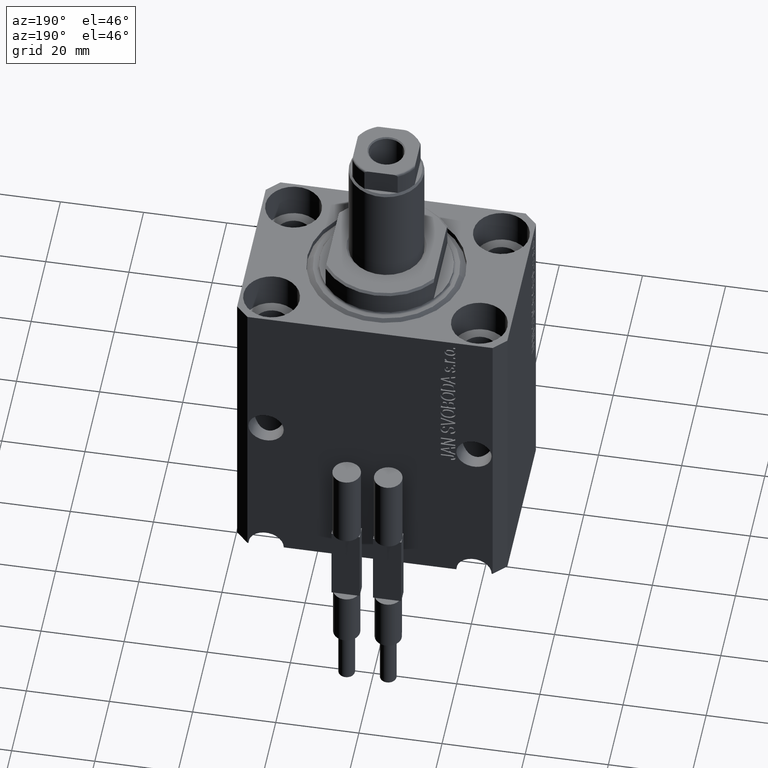
[diagram: clean part render]
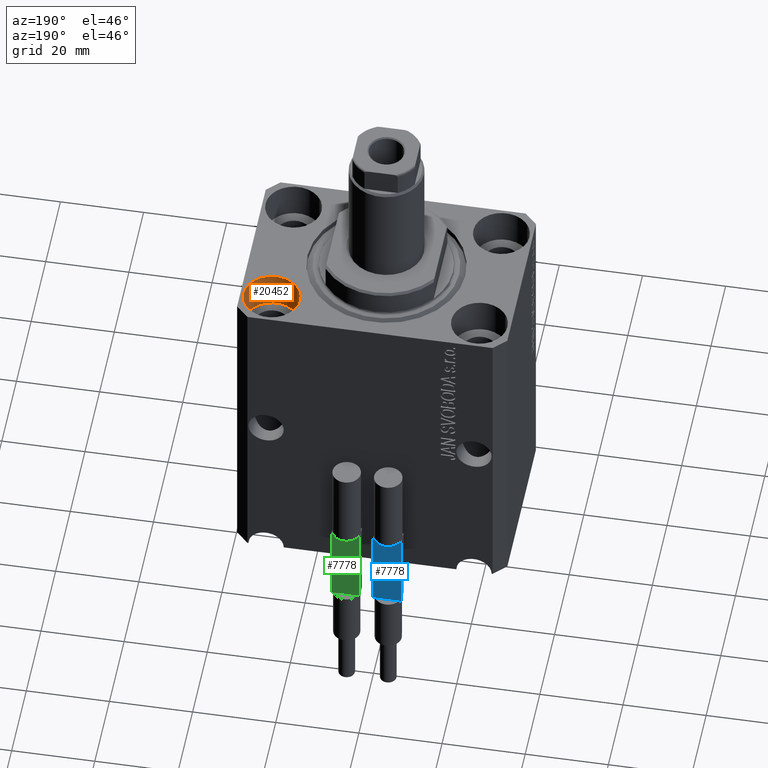
[diagram: same view with three faces highlighted in distinct colors, each labeled with its STEP entity id]
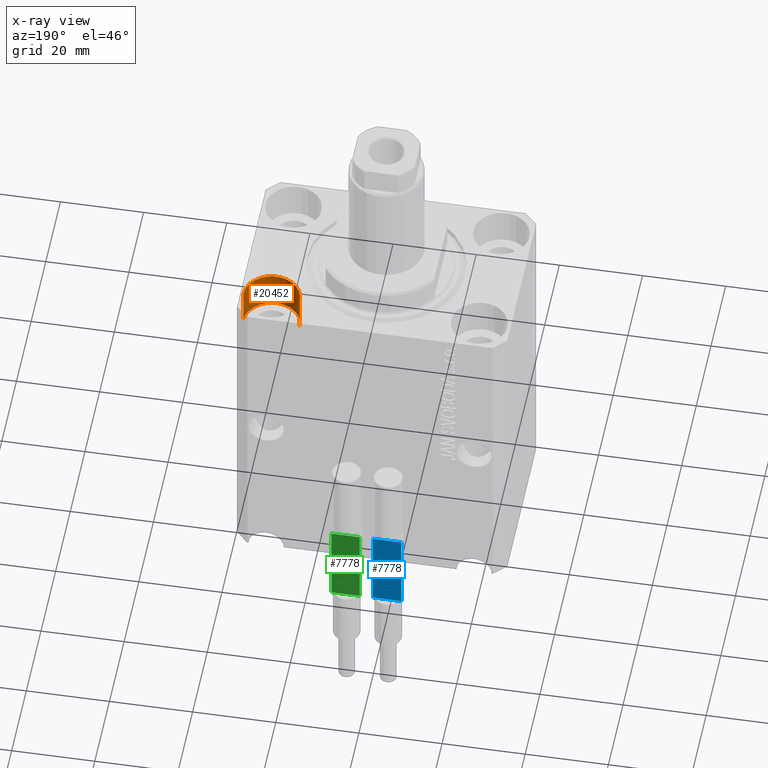
[diagram: x-ray of the same camera — body ghosted, the three highlighted faces saturated]
A machine part, auxiliary view with three faces highlighted in distinct colors.
The next image is the same camera in x-ray (body ghosted, the three faces saturated) — at least one of them is partly hidden behind the body in this view.
Their STEP definitions:

[orange] entity #20452 — the highlighted cylindrical surface (edge-blend (fillet) strip) has radius 6.75 mm, axis along (0, 0, 1).
#418 = VECTOR ( 'NONE', #1900, 1000.000000000000000 ) ;
#1216 = EDGE_CURVE ( 'NONE', #37920, #41885, #1761, .T. ) ;
#1310 = CARTESIAN_POINT ( 'NONE',  ( 31.74999999995845101, 15.00000000000000888, -9.000000000000000000 ) ) ;
#1761 = LINE ( 'NONE', #1310, #5606 ) ;
#1900 = DIRECTION ( 'NONE',  ( -0.000000000000000000, -0.000000000000000000, 1.000000000000000000 ) ) ;
#2991 = CARTESIAN_POINT ( 'NONE',  ( 18.25000000004154543, 15.00000000000000888, -9.000000000000000000 ) ) ;
#4499 = AXIS2_PLACEMENT_3D ( 'NONE', #9960, #23493, #23938 ) ;
#5539 = DIRECTION ( 'NONE',  ( 1.000000000000000000, 0.000000000000000000, 0.000000000000000000 ) ) ;
#5606 = VECTOR ( 'NONE', #14837, 1000.000000000000000 ) ;
#6857 = FACE_OUTER_BOUND ( 'NONE', #43462, .T. ) ;
#9442 = ORIENTED_EDGE ( 'NONE', *, *, #17221, .F. ) ;
#9960 = CARTESIAN_POINT ( 'NONE',  ( 24.99999999999999645, 15.00000000000000888, -9.000000000000000000 ) ) ;
#12284 = EDGE_CURVE ( 'NONE', #19403, #41885, #38084, .T. ) ;
#13046 = DIRECTION ( 'NONE',  ( 1.000000000000000000, 0.000000000000000000, 0.000000000000000000 ) ) ;
#14837 = DIRECTION ( 'NONE',  ( -0.000000000000000000, -0.000000000000000000, 1.000000000000000000 ) ) ;
#17221 = EDGE_CURVE ( 'NONE', #31611, #37920, #33007, .T. ) ;
#19307 = CARTESIAN_POINT ( 'NONE',  ( 18.25000000004154543, 15.00000000000000888, -9.000000000000000000 ) ) ;
#19403 = VERTEX_POINT ( 'NONE', #25733 ) ;
#20452 = ADVANCED_FACE ( 'NONE', ( #6857 ), #27013, .F. ) ;
#21046 = DIRECTION ( 'NONE',  ( -0.000000000000000000, -0.000000000000000000, 1.000000000000000000 ) ) ;
#21871 = ORIENTED_EDGE ( 'NONE', *, *, #12284, .T. ) ;
#23493 = DIRECTION ( 'NONE',  ( 0.000000000000000000, 0.000000000000000000, 1.000000000000000000 ) ) ;
#23938 = DIRECTION ( 'NONE',  ( 1.000000000000000000, 0.000000000000000000, 0.000000000000000000 ) ) ;
#24225 = CARTESIAN_POINT ( 'NONE',  ( 31.74999999995845101, 15.00000000000000888, -9.000000000000000000 ) ) ;
#25733 = CARTESIAN_POINT ( 'NONE',  ( 18.25000000004154543, 15.00000000000000888, 0.000000000000000000 ) ) ;
#25937 = DIRECTION ( 'NONE',  ( 0.000000000000000000, 0.000000000000000000, 1.000000000000000000 ) ) ;
#27013 = CYLINDRICAL_SURFACE ( 'NONE', #41889, 6.749999999958452790 ) ;
#27572 = EDGE_CURVE ( 'NONE', #31611, #19403, #36950, .T. ) ;
#27691 = CARTESIAN_POINT ( 'NONE',  ( 24.99999999999999645, 15.00000000000000888, -9.000000000000000000 ) ) ;
#28759 = CARTESIAN_POINT ( 'NONE',  ( 31.74999999995845101, 15.00000000000000888, 0.000000000000000000 ) ) ;
#30052 = AXIS2_PLACEMENT_3D ( 'NONE', #39929, #25937, #5539 ) ;
#30854 = ORIENTED_EDGE ( 'NONE', *, *, #27572, .T. ) ;
#31611 = VERTEX_POINT ( 'NONE', #2991 ) ;
#33007 = CIRCLE ( 'NONE', #4499, 6.749999999958452790 ) ;
#36950 = LINE ( 'NONE', #19307, #418 ) ;
#37920 = VERTEX_POINT ( 'NONE', #24225 ) ;
#38084 = CIRCLE ( 'NONE', #30052, 6.749999999958452790 ) ;
#39929 = CARTESIAN_POINT ( 'NONE',  ( 24.99999999999999645, 15.00000000000000888, 0.000000000000000000 ) ) ;
#41885 = VERTEX_POINT ( 'NONE', #28759 ) ;
#41889 = AXIS2_PLACEMENT_3D ( 'NONE', #27691, #21046, #13046 ) ;
#43462 = EDGE_LOOP ( 'NONE', ( #9442, #30854, #21871, #43550 ) ) ;
#43550 = ORIENTED_EDGE ( 'NONE', *, *, #1216, .F. ) ;

[blue] entity #7778 — the highlighted planar face has unit normal (0, -1, 0).
#50 = VECTOR ( 'NONE', #22550, 1000.000000000000000 ) ;
#84 = CARTESIAN_POINT ( 'NONE',  ( -3.399999999999999911, 1.500000000000000000, 20.00000000000000000 ) ) ;
#528 = LINE ( 'NONE', #84, #34170 ) ;
#536 = LINE ( 'NONE', #17728, #41545 ) ;
#618 = CARTESIAN_POINT ( 'NONE',  ( -3.399999999999999911, 1.500000000000000000, 40.00000000000000000 ) ) ;
#665 = ORIENTED_EDGE ( 'NONE', *, *, #3576, .T. ) ;
#869 = VERTEX_POINT ( 'NONE', #8514 ) ;
#1028 = VERTEX_POINT ( 'NONE', #12127 ) ;
#1879 = CARTESIAN_POINT ( 'NONE',  ( -3.399999999999999911, 1.500000000000000000, 20.00000000000000000 ) ) ;
#1891 = ORIENTED_EDGE ( 'NONE', *, *, #18344, .F. ) ;
#2522 = VERTEX_POINT ( 'NONE', #40874 ) ;
#3576 = EDGE_CURVE ( 'NONE', #1028, #2522, #528, .T. ) ;
#3784 = VERTEX_POINT ( 'NONE', #10024 ) ;
#4351 = CARTESIAN_POINT ( 'NONE',  ( -3.399999999999999911, 1.500000000000000000, 20.00000000000000000 ) ) ;
#4526 = EDGE_CURVE ( 'NONE', #3784, #21513, #536, .T. ) ;
#5511 = ORIENTED_EDGE ( 'NONE', *, *, #20854, .F. ) ;
#7778 = ADVANCED_FACE ( 'NONE', ( #11156 ), #24899, .F. ) ;
#7797 = VERTEX_POINT ( 'NONE', #25346 ) ;
#8514 = CARTESIAN_POINT ( 'NONE',  ( -3.399999999999999911, 1.500000000000000000, 40.00000000000000000 ) ) ;
#10024 = CARTESIAN_POINT ( 'NONE',  ( 3.400000000000000355, 1.500000000000000000, 40.00000000000000000 ) ) ;
#11156 = FACE_OUTER_BOUND ( 'NONE', #24067, .T. ) ;
#11158 = LINE ( 'NONE', #618, #42649 ) ;
#11485 = CARTESIAN_POINT ( 'NONE',  ( 2.883140648667699146, 1.500000000000000000, 40.00000000000000000 ) ) ;
#12127 = CARTESIAN_POINT ( 'NONE',  ( -3.051229260478471428, 1.500000000000000000, 20.00000000000000000 ) ) ;
#12234 = ORIENTED_EDGE ( 'NONE', *, *, #4526, .F. ) ;
#12322 = EDGE_CURVE ( 'NONE', #35675, #1028, #36710, .T. ) ;
#12798 = VECTOR ( 'NONE', #28421, 1000.000000000000000 ) ;
#13591 = LINE ( 'NONE', #33986, #34498 ) ;
#14209 = ORIENTED_EDGE ( 'NONE', *, *, #42520, .T. ) ;
#17728 = CARTESIAN_POINT ( 'NONE',  ( -3.399999999999999911, 1.500000000000000000, 40.00000000000000000 ) ) ;
#18344 = EDGE_CURVE ( 'NONE', #21513, #41859, #13591, .T. ) ;
#19789 = VECTOR ( 'NONE', #37149, 1000.000000000000000 ) ;
#20854 = EDGE_CURVE ( 'NONE', #869, #2522, #11158, .T. ) ;
#21513 = VERTEX_POINT ( 'NONE', #11485 ) ;
#21981 = LINE ( 'NONE', #4351, #22664 ) ;
#22550 = DIRECTION ( 'NONE',  ( -1.000000000000000000, -0.000000000000000000, -0.000000000000000000 ) ) ;
#22664 = VECTOR ( 'NONE', #32301, 1000.000000000000000 ) ;
#23215 = LINE ( 'NONE', #40653, #50 ) ;
#24067 = EDGE_LOOP ( 'NONE', ( #14209, #32144, #665, #5511, #25706, #1891, #12234, #45029 ) ) ;
#24817 = DIRECTION ( 'NONE',  ( -1.000000000000000000, -0.000000000000000000, -0.000000000000000000 ) ) ;
#24899 = PLANE ( 'NONE',  #31402 ) ;
#25346 = CARTESIAN_POINT ( 'NONE',  ( 3.400000000000000355, 1.500000000000000000, 20.00000000000000000 ) ) ;
#25409 = EDGE_CURVE ( 'NONE', #3784, #7797, #25430, .T. ) ;
#25430 = LINE ( 'NONE', #39414, #12798 ) ;
#25706 = ORIENTED_EDGE ( 'NONE', *, *, #43894, .F. ) ;
#26120 = CARTESIAN_POINT ( 'NONE',  ( 3.051229260478471428, 1.500000000000000000, 20.00000000000000000 ) ) ;
#28421 = DIRECTION ( 'NONE',  ( -0.000000000000000000, -0.000000000000000000, -1.000000000000000000 ) ) ;
#28579 = DIRECTION ( 'NONE',  ( -0.000000000000000000, -0.000000000000000000, -1.000000000000000000 ) ) ;
#29432 = CARTESIAN_POINT ( 'NONE',  ( -2.883140648667699146, 1.500000000000000000, 40.00000000000000000 ) ) ;
#30551 = DIRECTION ( 'NONE',  ( -1.000000000000000000, -0.000000000000000000, -0.000000000000000000 ) ) ;
#31402 = AXIS2_PLACEMENT_3D ( 'NONE', #44680, #38892, #41231 ) ;
#32144 = ORIENTED_EDGE ( 'NONE', *, *, #12322, .T. ) ;
#32301 = DIRECTION ( 'NONE',  ( -1.000000000000000000, -0.000000000000000000, -0.000000000000000000 ) ) ;
#33986 = CARTESIAN_POINT ( 'NONE',  ( -3.399999999999999911, 1.500000000000000000, 40.00000000000000000 ) ) ;
#34170 = VECTOR ( 'NONE', #42011, 1000.000000000000000 ) ;
#34498 = VECTOR ( 'NONE', #30551, 1000.000000000000000 ) ;
#35675 = VERTEX_POINT ( 'NONE', #26120 ) ;
#36710 = LINE ( 'NONE', #1879, #19789 ) ;
#37149 = DIRECTION ( 'NONE',  ( -1.000000000000000000, -0.000000000000000000, -0.000000000000000000 ) ) ;
#38892 = DIRECTION ( 'NONE',  ( 0.000000000000000000, -1.000000000000000000, 0.000000000000000000 ) ) ;
#39414 = CARTESIAN_POINT ( 'NONE',  ( 3.400000000000000355, 1.500000000000000000, 40.00000000000000000 ) ) ;
#40653 = CARTESIAN_POINT ( 'NONE',  ( -3.399999999999999911, 1.500000000000000000, 40.00000000000000000 ) ) ;
#40874 = CARTESIAN_POINT ( 'NONE',  ( -3.399999999999999911, 1.500000000000000000, 20.00000000000000000 ) ) ;
#41231 = DIRECTION ( 'NONE',  ( 0.000000000000000000, -0.000000000000000000, -1.000000000000000000 ) ) ;
#41545 = VECTOR ( 'NONE', #24817, 1000.000000000000000 ) ;
#41859 = VERTEX_POINT ( 'NONE', #29432 ) ;
#42011 = DIRECTION ( 'NONE',  ( -1.000000000000000000, -0.000000000000000000, -0.000000000000000000 ) ) ;
#42520 = EDGE_CURVE ( 'NONE', #7797, #35675, #21981, .T. ) ;
#42649 = VECTOR ( 'NONE', #28579, 1000.000000000000000 ) ;
#43894 = EDGE_CURVE ( 'NONE', #41859, #869, #23215, .T. ) ;
#44680 = CARTESIAN_POINT ( 'NONE',  ( -3.399999999999999911, 1.500000000000000000, 40.00000000000000000 ) ) ;
#45029 = ORIENTED_EDGE ( 'NONE', *, *, #25409, .T. ) ;

[green] entity #7778 — the highlighted planar face has unit normal (0, -1, 0).
#50 = VECTOR ( 'NONE', #22550, 1000.000000000000000 ) ;
#84 = CARTESIAN_POINT ( 'NONE',  ( -3.399999999999999911, 1.500000000000000000, 20.00000000000000000 ) ) ;
#528 = LINE ( 'NONE', #84, #34170 ) ;
#536 = LINE ( 'NONE', #17728, #41545 ) ;
#618 = CARTESIAN_POINT ( 'NONE',  ( -3.399999999999999911, 1.500000000000000000, 40.00000000000000000 ) ) ;
#665 = ORIENTED_EDGE ( 'NONE', *, *, #3576, .T. ) ;
#869 = VERTEX_POINT ( 'NONE', #8514 ) ;
#1028 = VERTEX_POINT ( 'NONE', #12127 ) ;
#1879 = CARTESIAN_POINT ( 'NONE',  ( -3.399999999999999911, 1.500000000000000000, 20.00000000000000000 ) ) ;
#1891 = ORIENTED_EDGE ( 'NONE', *, *, #18344, .F. ) ;
#2522 = VERTEX_POINT ( 'NONE', #40874 ) ;
#3576 = EDGE_CURVE ( 'NONE', #1028, #2522, #528, .T. ) ;
#3784 = VERTEX_POINT ( 'NONE', #10024 ) ;
#4351 = CARTESIAN_POINT ( 'NONE',  ( -3.399999999999999911, 1.500000000000000000, 20.00000000000000000 ) ) ;
#4526 = EDGE_CURVE ( 'NONE', #3784, #21513, #536, .T. ) ;
#5511 = ORIENTED_EDGE ( 'NONE', *, *, #20854, .F. ) ;
#7778 = ADVANCED_FACE ( 'NONE', ( #11156 ), #24899, .F. ) ;
#7797 = VERTEX_POINT ( 'NONE', #25346 ) ;
#8514 = CARTESIAN_POINT ( 'NONE',  ( -3.399999999999999911, 1.500000000000000000, 40.00000000000000000 ) ) ;
#10024 = CARTESIAN_POINT ( 'NONE',  ( 3.400000000000000355, 1.500000000000000000, 40.00000000000000000 ) ) ;
#11156 = FACE_OUTER_BOUND ( 'NONE', #24067, .T. ) ;
#11158 = LINE ( 'NONE', #618, #42649 ) ;
#11485 = CARTESIAN_POINT ( 'NONE',  ( 2.883140648667699146, 1.500000000000000000, 40.00000000000000000 ) ) ;
#12127 = CARTESIAN_POINT ( 'NONE',  ( -3.051229260478471428, 1.500000000000000000, 20.00000000000000000 ) ) ;
#12234 = ORIENTED_EDGE ( 'NONE', *, *, #4526, .F. ) ;
#12322 = EDGE_CURVE ( 'NONE', #35675, #1028, #36710, .T. ) ;
#12798 = VECTOR ( 'NONE', #28421, 1000.000000000000000 ) ;
#13591 = LINE ( 'NONE', #33986, #34498 ) ;
#14209 = ORIENTED_EDGE ( 'NONE', *, *, #42520, .T. ) ;
#17728 = CARTESIAN_POINT ( 'NONE',  ( -3.399999999999999911, 1.500000000000000000, 40.00000000000000000 ) ) ;
#18344 = EDGE_CURVE ( 'NONE', #21513, #41859, #13591, .T. ) ;
#19789 = VECTOR ( 'NONE', #37149, 1000.000000000000000 ) ;
#20854 = EDGE_CURVE ( 'NONE', #869, #2522, #11158, .T. ) ;
#21513 = VERTEX_POINT ( 'NONE', #11485 ) ;
#21981 = LINE ( 'NONE', #4351, #22664 ) ;
#22550 = DIRECTION ( 'NONE',  ( -1.000000000000000000, -0.000000000000000000, -0.000000000000000000 ) ) ;
#22664 = VECTOR ( 'NONE', #32301, 1000.000000000000000 ) ;
#23215 = LINE ( 'NONE', #40653, #50 ) ;
#24067 = EDGE_LOOP ( 'NONE', ( #14209, #32144, #665, #5511, #25706, #1891, #12234, #45029 ) ) ;
#24817 = DIRECTION ( 'NONE',  ( -1.000000000000000000, -0.000000000000000000, -0.000000000000000000 ) ) ;
#24899 = PLANE ( 'NONE',  #31402 ) ;
#25346 = CARTESIAN_POINT ( 'NONE',  ( 3.400000000000000355, 1.500000000000000000, 20.00000000000000000 ) ) ;
#25409 = EDGE_CURVE ( 'NONE', #3784, #7797, #25430, .T. ) ;
#25430 = LINE ( 'NONE', #39414, #12798 ) ;
#25706 = ORIENTED_EDGE ( 'NONE', *, *, #43894, .F. ) ;
#26120 = CARTESIAN_POINT ( 'NONE',  ( 3.051229260478471428, 1.500000000000000000, 20.00000000000000000 ) ) ;
#28421 = DIRECTION ( 'NONE',  ( -0.000000000000000000, -0.000000000000000000, -1.000000000000000000 ) ) ;
#28579 = DIRECTION ( 'NONE',  ( -0.000000000000000000, -0.000000000000000000, -1.000000000000000000 ) ) ;
#29432 = CARTESIAN_POINT ( 'NONE',  ( -2.883140648667699146, 1.500000000000000000, 40.00000000000000000 ) ) ;
#30551 = DIRECTION ( 'NONE',  ( -1.000000000000000000, -0.000000000000000000, -0.000000000000000000 ) ) ;
#31402 = AXIS2_PLACEMENT_3D ( 'NONE', #44680, #38892, #41231 ) ;
#32144 = ORIENTED_EDGE ( 'NONE', *, *, #12322, .T. ) ;
#32301 = DIRECTION ( 'NONE',  ( -1.000000000000000000, -0.000000000000000000, -0.000000000000000000 ) ) ;
#33986 = CARTESIAN_POINT ( 'NONE',  ( -3.399999999999999911, 1.500000000000000000, 40.00000000000000000 ) ) ;
#34170 = VECTOR ( 'NONE', #42011, 1000.000000000000000 ) ;
#34498 = VECTOR ( 'NONE', #30551, 1000.000000000000000 ) ;
#35675 = VERTEX_POINT ( 'NONE', #26120 ) ;
#36710 = LINE ( 'NONE', #1879, #19789 ) ;
#37149 = DIRECTION ( 'NONE',  ( -1.000000000000000000, -0.000000000000000000, -0.000000000000000000 ) ) ;
#38892 = DIRECTION ( 'NONE',  ( 0.000000000000000000, -1.000000000000000000, 0.000000000000000000 ) ) ;
#39414 = CARTESIAN_POINT ( 'NONE',  ( 3.400000000000000355, 1.500000000000000000, 40.00000000000000000 ) ) ;
#40653 = CARTESIAN_POINT ( 'NONE',  ( -3.399999999999999911, 1.500000000000000000, 40.00000000000000000 ) ) ;
#40874 = CARTESIAN_POINT ( 'NONE',  ( -3.399999999999999911, 1.500000000000000000, 20.00000000000000000 ) ) ;
#41231 = DIRECTION ( 'NONE',  ( 0.000000000000000000, -0.000000000000000000, -1.000000000000000000 ) ) ;
#41545 = VECTOR ( 'NONE', #24817, 1000.000000000000000 ) ;
#41859 = VERTEX_POINT ( 'NONE', #29432 ) ;
#42011 = DIRECTION ( 'NONE',  ( -1.000000000000000000, -0.000000000000000000, -0.000000000000000000 ) ) ;
#42520 = EDGE_CURVE ( 'NONE', #7797, #35675, #21981, .T. ) ;
#42649 = VECTOR ( 'NONE', #28579, 1000.000000000000000 ) ;
#43894 = EDGE_CURVE ( 'NONE', #41859, #869, #23215, .T. ) ;
#44680 = CARTESIAN_POINT ( 'NONE',  ( -3.399999999999999911, 1.500000000000000000, 40.00000000000000000 ) ) ;
#45029 = ORIENTED_EDGE ( 'NONE', *, *, #25409, .T. ) ;